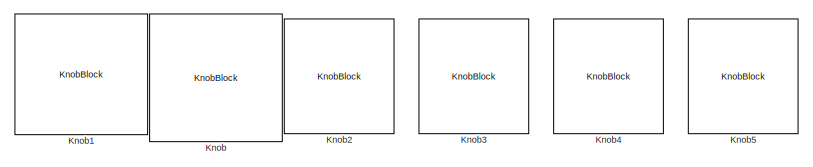
[diagram: root canvas - part 1/4, top left region]
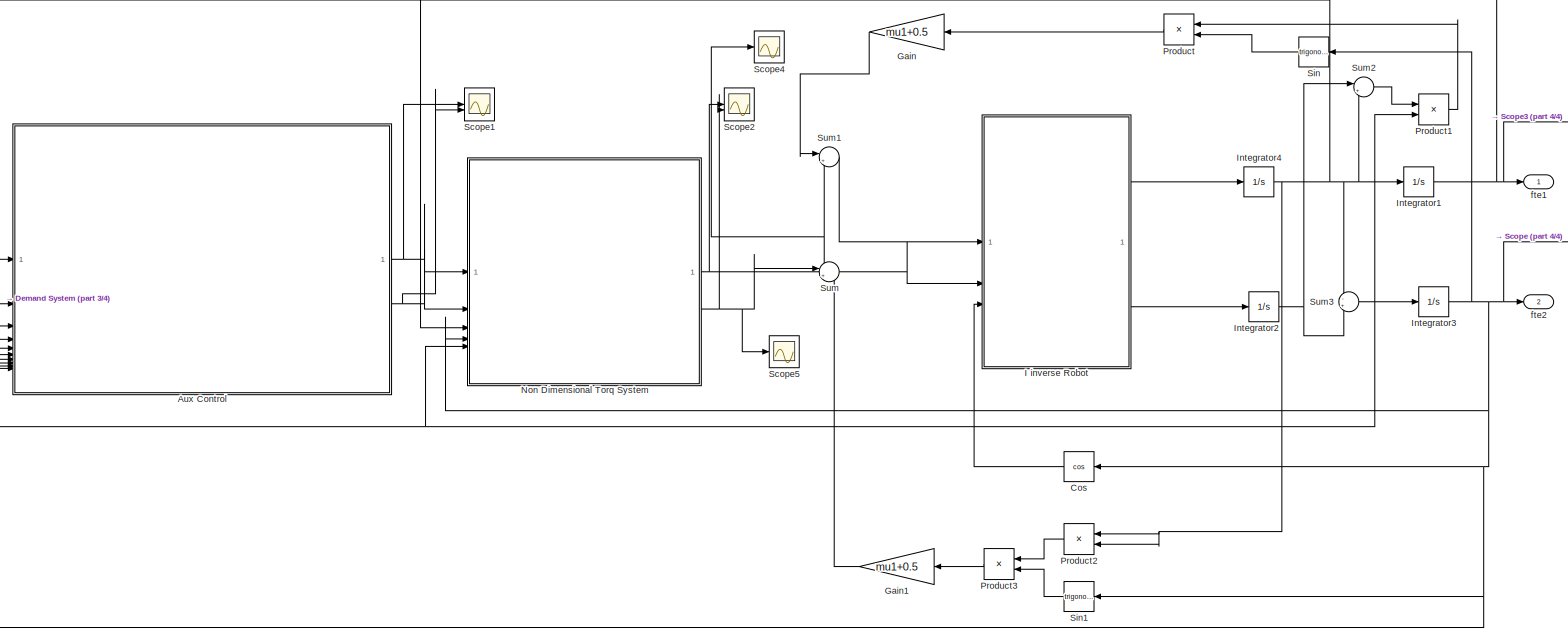
[diagram: root canvas - part 2/4, central region]
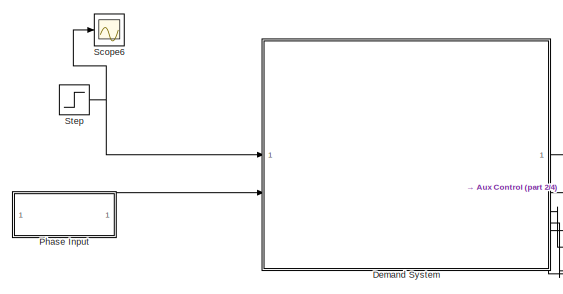
[diagram: root canvas - part 3/4, middle left region]
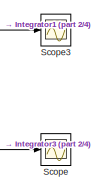
[diagram: root canvas - part 4/4, middle right region]
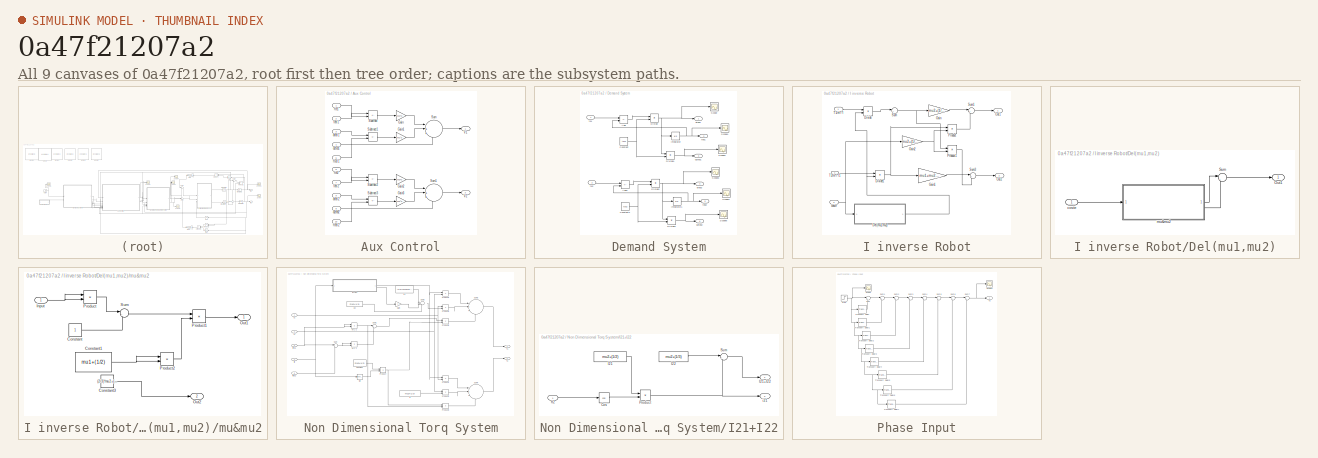
[diagram: thumbnail index - all 9 canvases of the model, root first then tree order]
MODEL slx_0a47f21207a2
KIND model
CONFIG AbsTol = auto
CONFIG EnableMultiTasking = off
CONFIG FixedStep = 0.01
CONFIG MaxStep = auto
CONFIG MinStep = auto
CONFIG RelTol = 1e-3
CONFIG SampleTimeConstraint = Unconstrained
CONFIG SolverName = FixedStepAuto
CONFIG StartTime = 0.0
CONFIG StopTime = 10.0
WORKSPACE source: mxarray member
WORKSPACE U2: Simulink.Parameter (value not decoded)
WORKSPACE W: Simulink.Parameter (value not decoded)
WORKSPACE W1: Simulink.Parameter (value not decoded)
WORKSPACE W2: Simulink.Parameter (value not decoded)
WORKSPACE mu1: Simulink.Parameter (value not decoded)
WORKSPACE mu2: Simulink.Parameter (value not decoded)
WORKSPACE pi = 3.142
WORKSPACE tou: Simulink.Parameter (value not decoded)
WORKSPACE tou1: Simulink.Parameter (value not decoded)
WORKSPACE tou2: Simulink.Parameter (value not decoded)
BLOCK [SubSystem] Aux Control
BLOCK [Gain] Aux Control/Gain
  Gain = W1*2
BLOCK [Gain] Aux Control/Gain1
  Gain = W1^2
BLOCK [Gain] Aux Control/Gain2
  Gain = W2*2
BLOCK [Gain] Aux Control/Gain3
  Gain = W2^2
BLOCK [Sum] Aux Control/Subtract
  IconShape = rectangular
  Inputs = +-
BLOCK [Sum] Aux Control/Subtract1
  IconShape = rectangular
  Inputs = +-
BLOCK [Sum] Aux Control/Subtract2
  IconShape = rectangular
  Inputs = +-
BLOCK [Sum] Aux Control/Subtract3
  IconShape = rectangular
  Inputs = +-
BLOCK [Sum] Aux Control/Sum
  Inputs = |+++
BLOCK [Sum] Aux Control/Sum1
  Inputs = |+++
BLOCK [Outport] Aux Control/V1
BLOCK [Outport] Aux Control/V2
  Port = 2
BLOCK [Inport] Aux Control/d2ted1
  Port = 4
BLOCK [Inport] Aux Control/d2ted2
  Port = 8
BLOCK [Inport] Aux Control/dted 1
  Port = 3
BLOCK [Inport] Aux Control/dted 2
  Port = 9
BLOCK [Inport] Aux Control/fte1
BLOCK [Inport] Aux Control/fte2
  Port = 6
BLOCK [Inport] Aux Control/fted 1
  Port = 5
BLOCK [Inport] Aux Control/fted 2
  Port = 10
BLOCK [Inport] Aux Control/ted 1
  Port = 2
BLOCK [Inport] Aux Control/ted 2
  Port = 7
BLOCK [Trigonometry] Cos
  Operator = cos
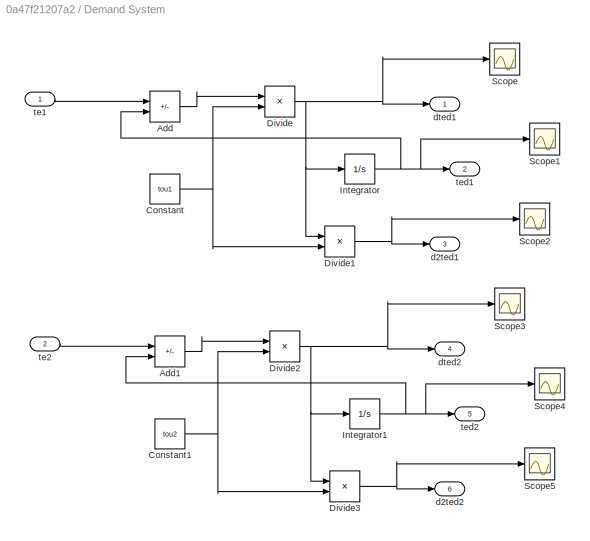
BLOCK [SubSystem] Demand System
BLOCK [Sum] Demand System/Add
  IconShape = rectangular
  Inputs = +-
BLOCK [Sum] Demand System/Add1
  IconShape = rectangular
  Inputs = +-
BLOCK [Constant] Demand System/Constant
  Value = tou1
BLOCK [Constant] Demand System/Constant1
  Value = tou2
BLOCK [Product] Demand System/Divide
  Inputs = */
BLOCK [Product] Demand System/Divide1
  Inputs = */
BLOCK [Product] Demand System/Divide2
  Inputs = */
BLOCK [Product] Demand System/Divide3
  Inputs = */
BLOCK [Integrator] Demand System/Integrator
BLOCK [Integrator] Demand System/Integrator1
BLOCK [Scope] Demand System/Scope
  Floating = off
  NumInputPorts = 1
  ScopeSpecificationString = Simulink.scopes.TimeScopeBlockCfg('CurrentConfiguration', extmgr.ConfigurationSet(extmgr.Configuration('Core','General UI',true),extmgr.Configuration('Core','Source UI',true),extmgr.Configuration('Sources','WiredSimulink',true,'DataLoggingVariableName','ScopeData6'),extmgr.Configuration('Visuals','Time Domain',true),extmgr.Configuration('Tools','Plot Navigation',true),extmgr.Configuration('Tools',...<+40ch>
BLOCK [Scope] Demand System/Scope1
  Floating = off
  NumInputPorts = 1
  ScopeSpecificationString = Simulink.scopes.TimeScopeBlockCfg('CurrentConfiguration', extmgr.ConfigurationSet(extmgr.Configuration('Core','General UI',true),extmgr.Configuration('Core','Source UI',true),extmgr.Configuration('Sources','WiredSimulink',true,'DataLoggingVariableName','ScopeData7'),extmgr.Configuration('Visuals','Time Domain',true),extmgr.Configuration('Tools','Plot Navigation',true),extmgr.Configuration('Tools',...<+40ch>
BLOCK [Scope] Demand System/Scope2
  Floating = off
  NumInputPorts = 1
  ScopeSpecificationString = Simulink.scopes.TimeScopeBlockCfg('CurrentConfiguration', extmgr.ConfigurationSet(extmgr.Configuration('Core','General UI',true),extmgr.Configuration('Core','Source UI',true),extmgr.Configuration('Sources','WiredSimulink',true,'DataLoggingVariableName','ScopeData8'),extmgr.Configuration('Visuals','Time Domain',true),extmgr.Configuration('Tools','Plot Navigation',true),extmgr.Configuration('Tools',...<+40ch>
BLOCK [Scope] Demand System/Scope3
  Floating = off
  NumInputPorts = 1
  ScopeSpecificationString = Simulink.scopes.TimeScopeBlockCfg('CurrentConfiguration', extmgr.ConfigurationSet(extmgr.Configuration('Core','General UI',true),extmgr.Configuration('Core','Source UI',true),extmgr.Configuration('Sources','WiredSimulink',true,'DataLoggingVariableName','ScopeData9'),extmgr.Configuration('Visuals','Time Domain',true),extmgr.Configuration('Tools','Plot Navigation',true),extmgr.Configuration('Tools',...<+40ch>
BLOCK [Scope] Demand System/Scope4
  Floating = off
  NumInputPorts = 1
  ScopeSpecificationString = Simulink.scopes.TimeScopeBlockCfg('CurrentConfiguration', extmgr.ConfigurationSet(extmgr.Configuration('Core','General UI',true),extmgr.Configuration('Core','Source UI',true),extmgr.Configuration('Sources','WiredSimulink',true,'DataLoggingVariableName','ScopeData10'),extmgr.Configuration('Visuals','Time Domain',true),extmgr.Configuration('Tools','Plot Navigation',true),extmgr.Configuration('Tools'...<+41ch>
BLOCK [Scope] Demand System/Scope5
  Floating = off
  NumInputPorts = 1
  ScopeSpecificationString = Simulink.scopes.TimeScopeBlockCfg('CurrentConfiguration', extmgr.ConfigurationSet(extmgr.Configuration('Core','General UI',true),extmgr.Configuration('Core','Source UI',true),extmgr.Configuration('Sources','WiredSimulink',true,'DataLoggingVariableName','ScopeData11'),extmgr.Configuration('Visuals','Time Domain',true),extmgr.Configuration('Tools','Plot Navigation',true),extmgr.Configuration('Tools'...<+41ch>
BLOCK [Outport] Demand System/d2ted1
  Port = 3
BLOCK [Outport] Demand System/d2ted2
  Port = 6
BLOCK [Outport] Demand System/dted1
BLOCK [Outport] Demand System/dted2
  Port = 4
BLOCK [Inport] Demand System/te1
BLOCK [Inport] Demand System/te2
  Port = 2
BLOCK [Outport] Demand System/ted1
  Port = 2
BLOCK [Outport] Demand System/ted2
  Port = 5
BLOCK [Gain] Gain
  Gain = mu1+0.5
BLOCK [Gain] Gain1
  Gain = mu1+0.5
BLOCK [SubSystem] I inverse Robot
BLOCK [SubSystem] I inverse Robot/Del(mu1,mu2)
BLOCK [Outport] I inverse Robot/Del(mu1,mu2)/Out1
BLOCK [Sum] I inverse Robot/Del(mu1,mu2)/Sum
  Inputs = |++
BLOCK [Inport] I inverse Robot/Del(mu1,mu2)/coste
BLOCK [SubSystem] I inverse Robot/Del(mu1,mu2)/mu&mu2
BLOCK [Constant] I inverse Robot/Del(mu1,mu2)/mu&mu2/Constant
BLOCK [Constant] I inverse Robot/Del(mu1,mu2)/mu&mu2/Constant1
  Value = mu1+(1/2)
BLOCK [Constant] I inverse Robot/Del(mu1,mu2)/mu&mu2/Constant3
  Value = (2/3)*mu2+(7/36)+(mu2+1/3)*mu1
BLOCK [Inport] I inverse Robot/Del(mu1,mu2)/mu&mu2/Input
BLOCK [Outport] I inverse Robot/Del(mu1,mu2)/mu&mu2/Out1
BLOCK [Outport] I inverse Robot/Del(mu1,mu2)/mu&mu2/Out2
  Port = 2
BLOCK [Product] I inverse Robot/Del(mu1,mu2)/mu&mu2/Product
BLOCK [Product] I inverse Robot/Del(mu1,mu2)/mu&mu2/Product1
BLOCK [Product] I inverse Robot/Del(mu1,mu2)/mu&mu2/Product2
BLOCK [Sum] I inverse Robot/Del(mu1,mu2)/mu&mu2/Sum
  Inputs = |-+
BLOCK [Product] I inverse Robot/Divide
  Inputs = */
BLOCK [Product] I inverse Robot/Divide1
  Inputs = */
BLOCK [Gain] I inverse Robot/Gain
  Gain = mu2+(1/3)
BLOCK [Gain] I inverse Robot/Gain1
  Gain = mu1+mu2+(4/3)
BLOCK [Gain] I inverse Robot/Gain2
  Gain = mu2+(1/2)
BLOCK [Outport] I inverse Robot/Out1
BLOCK [Outport] I inverse Robot/Out2
  Port = 2
BLOCK [Product] I inverse Robot/Product
BLOCK [Product] I inverse Robot/Product1
BLOCK [Sum] I inverse Robot/Sum
  Inputs = |+-
BLOCK [Sum] I inverse Robot/Sum1
  Inputs = |+-
BLOCK [Sum] I inverse Robot/Sum3
  Inputs = |+-
BLOCK [Inport] I inverse Robot/T1//m*l*l
BLOCK [Inport] I inverse Robot/T2//m*l*l1
  Port = 2
BLOCK [Inport] I inverse Robot/coste
  Port = 3
BLOCK [Integrator] Integrator1
BLOCK [Integrator] Integrator2
BLOCK [Integrator] Integrator3
BLOCK [Integrator] Integrator4
BLOCK [KnobBlock] Knob
  ScaleMax = 10
BLOCK [KnobBlock] Knob1
  ScaleMax = 10
BLOCK [KnobBlock] Knob2
  ScaleMax = 10
BLOCK [KnobBlock] Knob3
  ScaleMax = 10
BLOCK [KnobBlock] Knob4
  ScaleMax = 10
BLOCK [KnobBlock] Knob5
  ScaleMax = 10
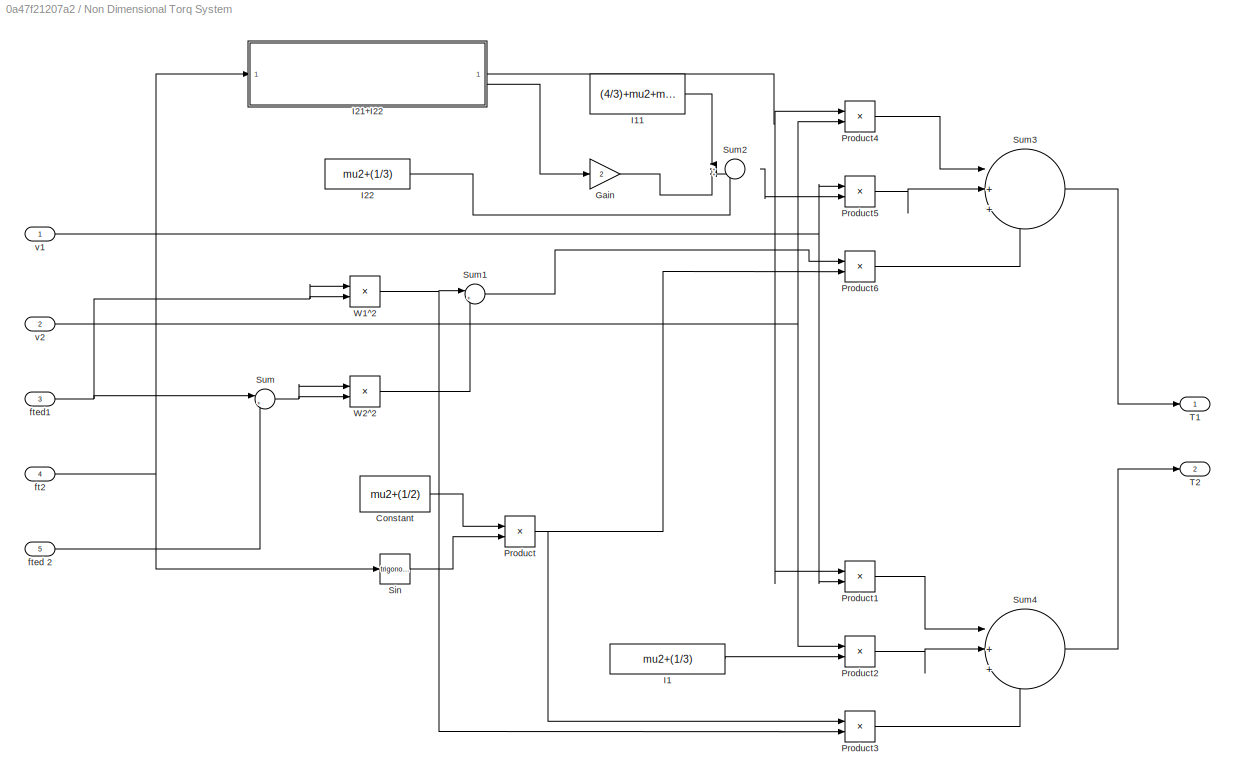
BLOCK [SubSystem] Non Dimensional Torq System
BLOCK [Constant] Non Dimensional Torq System/Constant
  Value = mu2+(1/2)
BLOCK [Gain] Non Dimensional Torq System/Gain
  Gain = 2
BLOCK [Constant] Non Dimensional Torq System/I1
  Value = mu2+(1/3)
BLOCK [Constant] Non Dimensional Torq System/I11
  Value = (4/3)+mu2+mu1
BLOCK [SubSystem] Non Dimensional Torq System/I21+I22
BLOCK [Trigonometry] Non Dimensional Torq System/I21+I22/Cos
  Operator = cos
BLOCK [Constant] Non Dimensional Torq System/I21+I22/I21
  Value = mu2+(1/2)
BLOCK [Outport] Non Dimensional Torq System/I21+I22/I21+I22
BLOCK [Constant] Non Dimensional Torq System/I21+I22/I22
  Value = mu2+(1/3)
BLOCK [Product] Non Dimensional Torq System/I21+I22/Product
BLOCK [Sum] Non Dimensional Torq System/I21+I22/Sum
  Inputs = |++
BLOCK [Inport] Non Dimensional Torq System/I21+I22/ft2
BLOCK [Outport] Non Dimensional Torq System/I21+I22/i21
  Port = 2
BLOCK [Constant] Non Dimensional Torq System/I22
  Value = mu2+(1/3)
BLOCK [Product] Non Dimensional Torq System/Product
BLOCK [Product] Non Dimensional Torq System/Product1
BLOCK [Product] Non Dimensional Torq System/Product2
BLOCK [Product] Non Dimensional Torq System/Product3
BLOCK [Product] Non Dimensional Torq System/Product4
BLOCK [Product] Non Dimensional Torq System/Product5
BLOCK [Product] Non Dimensional Torq System/Product6
BLOCK [Trigonometry] Non Dimensional Torq System/Sin
BLOCK [Sum] Non Dimensional Torq System/Sum
  Inputs = |++
BLOCK [Sum] Non Dimensional Torq System/Sum1
  Inputs = |+-
BLOCK [Sum] Non Dimensional Torq System/Sum2
  Inputs = |+++
BLOCK [Sum] Non Dimensional Torq System/Sum3
  Inputs = |+++
BLOCK [Sum] Non Dimensional Torq System/Sum4
  Inputs = |+++
BLOCK [Outport] Non Dimensional Torq System/T1
BLOCK [Outport] Non Dimensional Torq System/T2
  Port = 2
BLOCK [Product] Non Dimensional Torq System/W1^2
BLOCK [Product] Non Dimensional Torq System/W2^2
BLOCK [Inport] Non Dimensional Torq System/ft2
  Port = 4
BLOCK [Inport] Non Dimensional Torq System/fted 2
  Port = 5
BLOCK [Inport] Non Dimensional Torq System/fted1
  Port = 3
BLOCK [Inport] Non Dimensional Torq System/v1
BLOCK [Inport] Non Dimensional Torq System/v2
  Port = 2
BLOCK [SubSystem] Phase Input
BLOCK [Scope] Phase Input/Scope
  Floating = off
  NumInputPorts = 1
  ScopeSpecificationString = Simulink.scopes.TimeScopeBlockCfg('CurrentConfiguration', extmgr.ConfigurationSet(extmgr.Configuration('Core','General UI',true),extmgr.Configuration('Core','Source UI',true),extmgr.Configuration('Sources','WiredSimulink',true,'DataLoggingVariableName','ScopeData1'),extmgr.Configuration('Visuals','Time Domain',true),extmgr.Configuration('Tools','Plot Navigation',true),extmgr.Configuration('Tools',...<+40ch>
BLOCK [Scope] Phase Input/Scope1
  Floating = off
  NumInputPorts = 1
  ScopeSpecificationString = Simulink.scopes.TimeScopeBlockCfg('CurrentConfiguration', extmgr.ConfigurationSet(extmgr.Configuration('Core','General UI',true),extmgr.Configuration('Core','Source UI',true),extmgr.Configuration('Sources','WiredSimulink',true,'DataLoggingVariableName','ScopeData2'),extmgr.Configuration('Visuals','Time Domain',true,'SerializedDisplays',{struct('MinYLimReal','-0.58912','MaxYLimReal','5.30212','YLab...<+1779ch>
BLOCK [Step] Phase Input/Step
  After = pi/6
  SampleTime = 0
  Time = 0.5
BLOCK [Sum] Phase Input/Sum
  Inputs = |++
BLOCK [Sum] Phase Input/Sum1
  Inputs = |++
BLOCK [Sum] Phase Input/Sum2
  Inputs = |++
BLOCK [Sum] Phase Input/Sum3
  Inputs = |++
BLOCK [Sum] Phase Input/Sum4
  Inputs = |++
BLOCK [Sum] Phase Input/Sum5
  Inputs = |++
BLOCK [Sum] Phase Input/Sum6
  Inputs = |++
BLOCK [Sum] Phase Input/Sum7
  Inputs = |++
BLOCK [Outport] Phase Input/T2
BLOCK [TransportDelay] Phase Input/Transport Delay
BLOCK [TransportDelay] Phase Input/Transport Delay1
  DelayTime = 2
BLOCK [TransportDelay] Phase Input/Transport Delay2
  DelayTime = 3
BLOCK [TransportDelay] Phase Input/Transport Delay3
  DelayTime = 4
BLOCK [TransportDelay] Phase Input/Transport Delay4
  DelayTime = 5
BLOCK [TransportDelay] Phase Input/Transport Delay5
  DelayTime = 6
BLOCK [TransportDelay] Phase Input/Transport Delay6
  DelayTime = 7
BLOCK [TransportDelay] Phase Input/Transport Delay7
  DelayTime = 8
BLOCK [Product] Product
BLOCK [Product] Product1
BLOCK [Product] Product2
BLOCK [Product] Product3
BLOCK [Scope] Scope
  Floating = off
  NumInputPorts = 1
  ScopeSpecificationString = Simulink.scopes.TimeScopeBlockCfg('CurrentConfiguration', extmgr.ConfigurationSet(extmgr.Configuration('Core','General UI',true),extmgr.Configuration('Core','Source UI',true),extmgr.Configuration('Sources','WiredSimulink',true),extmgr.Configuration('Visuals','Time Domain',true,'SerializedDisplays',{struct('MinYLimReal','-0.29551','MaxYLimReal','2.64059','YLabelReal','','MinYLimMag','0.00000','MaxY...<+1514ch>
BLOCK [Scope] Scope1
  Floating = off
  NumInputPorts = 2
  ScopeSpecificationString = Simulink.scopes.TimeScopeBlockCfg('CurrentConfiguration', extmgr.ConfigurationSet(extmgr.Configuration('Core','General UI',true),extmgr.Configuration('Core','Source UI',true),extmgr.Configuration('Sources','WiredSimulink',true,'DataLoggingVariableName','ScopeData1'),extmgr.Configuration('Visuals','Time Domain',true,'SerializedDisplays',{struct('MinYLimReal','-0.71245','MaxYLimReal','2.13381','YLab...<+1576ch>
BLOCK [Scope] Scope2
  Floating = off
  NumInputPorts = 2
  ScopeSpecificationString = Simulink.scopes.TimeScopeBlockCfg('CurrentConfiguration', extmgr.ConfigurationSet(extmgr.Configuration('Core','General UI',true),extmgr.Configuration('Core','Source UI',true),extmgr.Configuration('Sources','WiredSimulink',true,'DataLoggingVariableName','ScopeData2'),extmgr.Configuration('Visuals','Time Domain',true,'SerializedDisplays',{struct('MinYLimReal','-0.84353','MaxYLimReal','6.00718','YLab...<+1609ch>
BLOCK [Scope] Scope3
  Floating = off
  NumInputPorts = 1
  ScopeSpecificationString = Simulink.scopes.TimeScopeBlockCfg('CurrentConfiguration', extmgr.ConfigurationSet(extmgr.Configuration('Core','General UI',true),extmgr.Configuration('Core','Source UI',true),extmgr.Configuration('Sources','WiredSimulink',true,'DataLoggingVariableName','ScopeData3'),extmgr.Configuration('Visuals','Time Domain',true,'SerializedDisplays',{struct('MinYLimReal','-0.01288','MaxYLimReal','0.11591','YLab...<+1554ch>
BLOCK [Scope] Scope4
  Floating = off
  NumInputPorts = 1
  ScopeSpecificationString = Simulink.scopes.TimeScopeBlockCfg('CurrentConfiguration', extmgr.ConfigurationSet(extmgr.Configuration('Core','General UI',true),extmgr.Configuration('Core','Source UI',true),extmgr.Configuration('Sources','WiredSimulink',true,'DataLoggingVariableName','ScopeData4'),extmgr.Configuration('Visuals','Time Domain',true,'SerializedDisplays',{struct('MinYLimReal','-0.84353','MaxYLimReal','6.00718','YLab...<+1530ch>
BLOCK [Scope] Scope5
  Floating = off
  NumInputPorts = 1
  ScopeSpecificationString = Simulink.scopes.TimeScopeBlockCfg('CurrentConfiguration', extmgr.ConfigurationSet(extmgr.Configuration('Core','General UI',true),extmgr.Configuration('Core','Source UI',true),extmgr.Configuration('Sources','WiredSimulink',true,'DataLoggingVariableName','ScopeData5'),extmgr.Configuration('Visuals','Time Domain',true,'SerializedDisplays',{struct('MinYLimReal','-0.22361','MaxYLimReal','1.91081','YLab...<+1506ch>
BLOCK [Scope] Scope6
  Floating = off
  NumInputPorts = 1
  ScopeSpecificationString = Simulink.scopes.TimeScopeBlockCfg('CurrentConfiguration', extmgr.ConfigurationSet(extmgr.Configuration('Core','General UI',true),extmgr.Configuration('Core','Source UI',true),extmgr.Configuration('Sources','WiredSimulink',true,'DataLoggingVariableName','ScopeData6'),extmgr.Configuration('Visuals','Time Domain',true,'SerializedDisplays',{struct('MinYLimReal','-0.01499','MaxYLimReal','0.13491','YLab...<+1521ch>
BLOCK [Trigonometry] Sin
BLOCK [Trigonometry] Sin1
BLOCK [Step] Step
  After = 6.87*(pi/180)
  SampleTime = 0
  Time = 0.5
BLOCK [Sum] Sum
  Inputs = |+-
BLOCK [Sum] Sum1
  Inputs = |++
BLOCK [Sum] Sum2
  Inputs = |++
BLOCK [Sum] Sum3
  Inputs = -+
BLOCK [Outport] fte1
BLOCK [Outport] fte2
  Port = 2
LINE Aux Control/Gain1:1 -> Aux Control/Sum:2
LINE Aux Control/Gain2:1 -> Aux Control/Sum1:1
LINE Aux Control/Gain3:1 -> Aux Control/Sum1:2
LINE Aux Control/Gain:1 -> Aux Control/Sum:1
LINE Aux Control/Subtract1:1 -> Aux Control/Gain1:1
LINE Aux Control/Subtract2:1 -> Aux Control/Gain2:1
LINE Aux Control/Subtract3:1 -> Aux Control/Gain3:1
LINE Aux Control/Subtract:1 -> Aux Control/Gain:1
LINE Aux Control/Sum1:1 -> Aux Control/V2:1
LINE Aux Control/Sum:1 -> Aux Control/V1:1
LINE Aux Control/d2ted1:1 -> Aux Control/Sum:3
LINE Aux Control/d2ted2:1 -> Aux Control/Sum1:3
LINE Aux Control/dted 1:1 -> Aux Control/Subtract1:1
LINE Aux Control/dted 2:1 -> Aux Control/Subtract3:1
LINE Aux Control/fte1:1 -> Aux Control/Subtract:2
LINE Aux Control/fte2:1 -> Aux Control/Subtract2:2
LINE Aux Control/fted 1:1 -> Aux Control/Subtract1:2
LINE Aux Control/fted 2:1 -> Aux Control/Subtract3:2
LINE Aux Control/ted 1:1 -> Aux Control/Subtract:1
LINE Aux Control/ted 2:1 -> Aux Control/Subtract2:1
NET Aux Control:1 -> Non Dimensional Torq System:1, Scope1:1
NET Aux Control:2 -> Non Dimensional Torq System:2, Scope1:2
LINE Cos:1 -> I inverse Robot:3
LINE Demand System/Add1:1 -> Demand System/Divide2:1
LINE Demand System/Add:1 -> Demand System/Divide:1
NET Demand System/Constant1:1 -> Demand System/Divide2:2, Demand System/Divide3:2
NET Demand System/Constant:1 -> Demand System/Divide1:2, Demand System/Divide:2
NET Demand System/Divide1:1 -> Demand System/Scope2:1, Demand System/d2ted1:1
NET Demand System/Divide2:1 -> Demand System/Divide3:1, Demand System/Integrator1:1, Demand System/Scope3:1, Demand System/dted2:1
NET Demand System/Divide3:1 -> Demand System/Scope5:1, Demand System/d2ted2:1
NET Demand System/Divide:1 -> Demand System/Divide1:1, Demand System/Integrator:1, Demand System/Scope:1, Demand System/dted1:1
NET Demand System/Integrator1:1 -> Demand System/Add1:2, Demand System/Scope4:1, Demand System/ted2:1
NET Demand System/Integrator:1 -> Demand System/Add:2, Demand System/Scope1:1, Demand System/ted1:1
LINE Demand System/te1:1 -> Demand System/Add:1
LINE Demand System/te2:1 -> Demand System/Add1:1
LINE Demand System:1 -> Aux Control:3
LINE Demand System:2 -> Aux Control:2
LINE Demand System:3 -> Aux Control:4
LINE Demand System:4 -> Aux Control:8
LINE Demand System:5 -> Aux Control:7
LINE Demand System:6 -> Aux Control:9
LINE Gain1:1 -> Sum:2
LINE Gain:1 -> Sum1:1
LINE I inverse Robot/Del(mu1,mu2)/Sum:1 -> I inverse Robot/Del(mu1,mu2)/Out1:1
LINE I inverse Robot/Del(mu1,mu2)/coste:1 -> I inverse Robot/Del(mu1,mu2)/mu&mu2:1
NET I inverse Robot/Del(mu1,mu2)/mu&mu2/Constant1:1 -> I inverse Robot/Del(mu1,mu2)/mu&mu2/Product2:1, I inverse Robot/Del(mu1,mu2)/mu&mu2/Product2:2
LINE I inverse Robot/Del(mu1,mu2)/mu&mu2/Constant3:1 -> I inverse Robot/Del(mu1,mu2)/mu&mu2/Out2:1
LINE I inverse Robot/Del(mu1,mu2)/mu&mu2/Constant:1 -> I inverse Robot/Del(mu1,mu2)/mu&mu2/Sum:2
NET I inverse Robot/Del(mu1,mu2)/mu&mu2/Input:1 -> I inverse Robot/Del(mu1,mu2)/mu&mu2/Product:1, I inverse Robot/Del(mu1,mu2)/mu&mu2/Product:2
LINE I inverse Robot/Del(mu1,mu2)/mu&mu2/Product1:1 -> I inverse Robot/Del(mu1,mu2)/mu&mu2/Out1:1
LINE I inverse Robot/Del(mu1,mu2)/mu&mu2/Product2:1 -> I inverse Robot/Del(mu1,mu2)/mu&mu2/Product1:2
LINE I inverse Robot/Del(mu1,mu2)/mu&mu2/Product:1 -> I inverse Robot/Del(mu1,mu2)/mu&mu2/Sum:1
LINE I inverse Robot/Del(mu1,mu2)/mu&mu2/Sum:1 -> I inverse Robot/Del(mu1,mu2)/mu&mu2/Product1:1
LINE I inverse Robot/Del(mu1,mu2)/mu&mu2:1 -> I inverse Robot/Del(mu1,mu2)/Sum:1
LINE I inverse Robot/Del(mu1,mu2)/mu&mu2:2 -> I inverse Robot/Del(mu1,mu2)/Sum:2
NET I inverse Robot/Del(mu1,mu2):1 -> I inverse Robot/Divide1:2, I inverse Robot/Divide:2
NET I inverse Robot/Divide1:1 -> I inverse Robot/Gain1:1, I inverse Robot/Product:1
LINE I inverse Robot/Divide:1 -> I inverse Robot/Sum:1
LINE I inverse Robot/Gain1:1 -> I inverse Robot/Sum3:1
NET I inverse Robot/Gain2:1 -> I inverse Robot/Product1:2, I inverse Robot/Product:2
LINE I inverse Robot/Gain:1 -> I inverse Robot/Sum1:1
LINE I inverse Robot/Product1:1 -> I inverse Robot/Sum3:2
LINE I inverse Robot/Product:1 -> I inverse Robot/Sum1:2
LINE I inverse Robot/Sum1:1 -> I inverse Robot/Out1:1
LINE I inverse Robot/Sum3:1 -> I inverse Robot/Out2:1
NET I inverse Robot/Sum:1 -> I inverse Robot/Gain:1, I inverse Robot/Product1:1
LINE I inverse Robot/T1//m*l*l:1 -> I inverse Robot/Divide:1
LINE I inverse Robot/T2//m*l*l1:1 -> I inverse Robot/Divide1:1
NET I inverse Robot/coste:1 -> I inverse Robot/Del(mu1,mu2):1, I inverse Robot/Gain2:1
LINE I inverse Robot:1 -> Integrator4:1
LINE I inverse Robot:2 -> Integrator2:1
NET Integrator1:1 -> Aux Control:1, Scope3:1, fte1:1
NET Integrator2:1 -> Sum2:1, Sum3:2
NET Integrator3:1 -> Aux Control:6, Cos:1, Non Dimensional Torq System:4, Scope:1, Sin1:1, Sin:1, fte2:1
NET Integrator4:1 -> Aux Control:5, Integrator1:1, Non Dimensional Torq System:3, Product2:1, Product2:2, Sum2:2, Sum3:1
LINE Non Dimensional Torq System/Constant:1 -> Non Dimensional Torq System/Product:1
LINE Non Dimensional Torq System/Gain:1 -> Non Dimensional Torq System/Sum2:2
LINE Non Dimensional Torq System/I11:1 -> Non Dimensional Torq System/Sum2:1
LINE Non Dimensional Torq System/I1:1 -> Non Dimensional Torq System/Product2:2
LINE Non Dimensional Torq System/I21+I22/Cos:1 -> Non Dimensional Torq System/I21+I22/Product:2
LINE Non Dimensional Torq System/I21+I22/I21:1 -> Non Dimensional Torq System/I21+I22/Product:1
LINE Non Dimensional Torq System/I21+I22/I22:1 -> Non Dimensional Torq System/I21+I22/Sum:1
NET Non Dimensional Torq System/I21+I22/Product:1 -> Non Dimensional Torq System/I21+I22/Sum:2, Non Dimensional Torq System/I21+I22/i21:1
LINE Non Dimensional Torq System/I21+I22/Sum:1 -> Non Dimensional Torq System/I21+I22/I21+I22:1
LINE Non Dimensional Torq System/I21+I22/ft2:1 -> Non Dimensional Torq System/I21+I22/Cos:1
NET Non Dimensional Torq System/I21+I22:1 -> Non Dimensional Torq System/Product1:1, Non Dimensional Torq System/Product4:1
LINE Non Dimensional Torq System/I21+I22:2 -> Non Dimensional Torq System/Gain:1
LINE Non Dimensional Torq System/I22:1 -> Non Dimensional Torq System/Sum2:3
LINE Non Dimensional Torq System/Product1:1 -> Non Dimensional Torq System/Sum4:1
LINE Non Dimensional Torq System/Product2:1 -> Non Dimensional Torq System/Sum4:2
LINE Non Dimensional Torq System/Product3:1 -> Non Dimensional Torq System/Sum4:3
LINE Non Dimensional Torq System/Product4:1 -> Non Dimensional Torq System/Sum3:1
LINE Non Dimensional Torq System/Product5:1 -> Non Dimensional Torq System/Sum3:2
LINE Non Dimensional Torq System/Product6:1 -> Non Dimensional Torq System/Sum3:3
NET Non Dimensional Torq System/Product:1 -> Non Dimensional Torq System/Product3:1, Non Dimensional Torq System/Product6:2
LINE Non Dimensional Torq System/Sin:1 -> Non Dimensional Torq System/Product:2
LINE Non Dimensional Torq System/Sum1:1 -> Non Dimensional Torq System/Product6:1
LINE Non Dimensional Torq System/Sum2:1 -> Non Dimensional Torq System/Product5:2
LINE Non Dimensional Torq System/Sum3:1 -> Non Dimensional Torq System/T1:1
LINE Non Dimensional Torq System/Sum4:1 -> Non Dimensional Torq System/T2:1
NET Non Dimensional Torq System/Sum:1 -> Non Dimensional Torq System/W2^2:1, Non Dimensional Torq System/W2^2:2
NET Non Dimensional Torq System/W1^2:1 -> Non Dimensional Torq System/Product3:2, Non Dimensional Torq System/Sum1:1
LINE Non Dimensional Torq System/W2^2:1 -> Non Dimensional Torq System/Sum1:2
NET Non Dimensional Torq System/ft2:1 -> Non Dimensional Torq System/I21+I22:1, Non Dimensional Torq System/Sin:1
LINE Non Dimensional Torq System/fted 2:1 -> Non Dimensional Torq System/Sum:2
NET Non Dimensional Torq System/fted1:1 -> Non Dimensional Torq System/Sum:1, Non Dimensional Torq System/W1^2:1, Non Dimensional Torq System/W1^2:2
NET Non Dimensional Torq System/v1:1 -> Non Dimensional Torq System/Product1:2, Non Dimensional Torq System/Product5:1
NET Non Dimensional Torq System/v2:1 -> Non Dimensional Torq System/Product2:1, Non Dimensional Torq System/Product4:2
NET Non Dimensional Torq System:1 -> Scope2:1, Scope4:1, Sum1:2
NET Non Dimensional Torq System:2 -> Scope2:2, Scope5:1, Sum:1
NET Phase Input/Step:1 -> Phase Input/Scope:1, Phase Input/Sum:1, Phase Input/Transport Delay1:1, Phase Input/Transport Delay2:1, Phase Input/Transport Delay3:1, Phase Input/Transport Delay4:1, Phase Input/Transport Delay5:1, Phase Input/Transport Delay6:1, Phase Input/Transport Delay7:1, Phase Input/Transport Delay:1
LINE Phase Input/Sum1:1 -> Phase Input/Sum2:1
LINE Phase Input/Sum2:1 -> Phase Input/Sum3:1
LINE Phase Input/Sum3:1 -> Phase Input/Sum4:1
LINE Phase Input/Sum4:1 -> Phase Input/Sum5:1
LINE Phase Input/Sum5:1 -> Phase Input/Sum6:1
LINE Phase Input/Sum6:1 -> Phase Input/Sum7:1
NET Phase Input/Sum7:1 -> Phase Input/Scope1:1, Phase Input/T2:1
LINE Phase Input/Sum:1 -> Phase Input/Sum1:1
LINE Phase Input/Transport Delay1:1 -> Phase Input/Sum1:2
LINE Phase Input/Transport Delay2:1 -> Phase Input/Sum2:2
LINE Phase Input/Transport Delay3:1 -> Phase Input/Sum3:2
LINE Phase Input/Transport Delay4:1 -> Phase Input/Sum4:2
LINE Phase Input/Transport Delay5:1 -> Phase Input/Sum5:2
LINE Phase Input/Transport Delay6:1 -> Phase Input/Sum6:2
LINE Phase Input/Transport Delay7:1 -> Phase Input/Sum7:2
LINE Phase Input/Transport Delay:1 -> Phase Input/Sum:2
LINE Phase Input:1 -> Demand System:2
LINE Product1:1 -> Product:1
LINE Product2:1 -> Product3:1
LINE Product3:1 -> Gain1:1
LINE Product:1 -> Gain:1
LINE Sin1:1 -> Product3:2
LINE Sin:1 -> Product:2
NET Step:1 -> Demand System:1, Scope6:1
LINE Sum1:1 -> I inverse Robot:1
LINE Sum2:1 -> Product1:1
NET Sum3:1 -> Aux Control:10, Integrator3:1, Non Dimensional Torq System:5, Product1:2
LINE Sum:1 -> I inverse Robot:2
note: NET lines group one-source signal fan-out (src -> all destinations, sorted); 1:1 wires keep LINE
